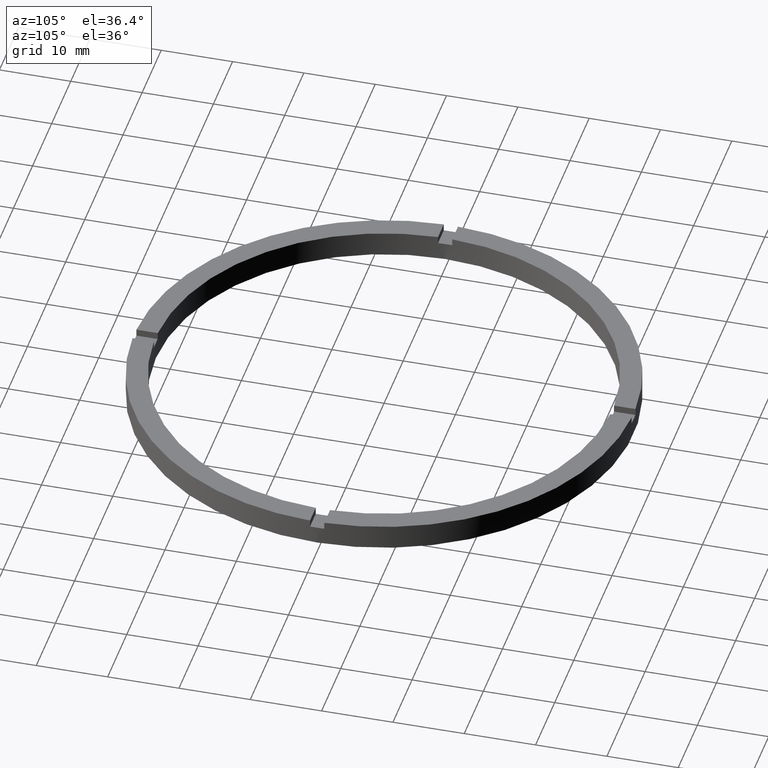
[diagram: clean part render]
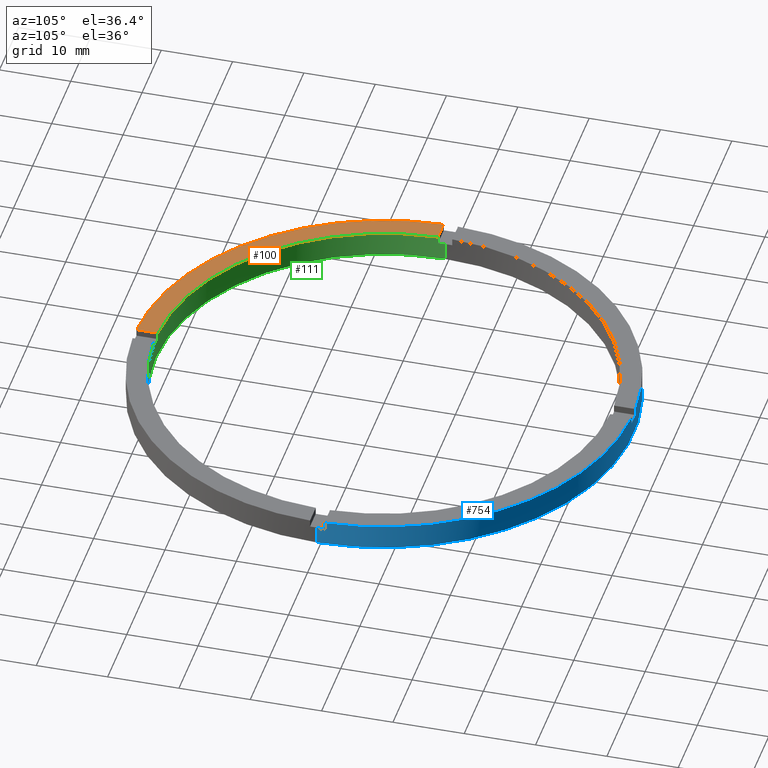
[diagram: same view with three faces highlighted in distinct colors, each labeled with its STEP entity id]
A machine part, auxiliary view with three faces highlighted in distinct colors.
Their STEP definitions:

[orange] entity #100 — the highlighted planar face has unit normal (0, 0, 1).
#29 = CARTESIAN_POINT ( 'NONE',  ( -31.98437118343894880, -1.000000000000026201, 3.500000000000000000 ) ) ;
#70 = AXIS2_PLACEMENT_3D ( 'NONE', #345, #662, #271 ) ;
#94 = CARTESIAN_POINT ( 'NONE',  ( -1.000000000000160538, -34.98571136907180090, 3.500000000000000000 ) ) ;
#97 = CARTESIAN_POINT ( 'NONE',  ( -25.00000000000019540, -1.000000000000024869, 3.500000000000000000 ) ) ;
#100 = ADVANCED_FACE ( 'NONE', ( #417 ), #463, .T. ) ;
#109 = EDGE_CURVE ( 'NONE', #545, #282, #199, .T. ) ;
#120 = EDGE_CURVE ( 'NONE', #135, #429, #718, .T. ) ;
#135 = VERTEX_POINT ( 'NONE', #154 ) ;
#145 = EDGE_CURVE ( 'NONE', #429, #545, #743, .T. ) ;
#154 = CARTESIAN_POINT ( 'NONE',  ( -34.98571136907180801, -1.000000000000026645, 3.500000000000000000 ) ) ;
#199 = LINE ( 'NONE', #381, #203 ) ;
#203 = VECTOR ( 'NONE', #698, 1000.000000000000000 ) ;
#214 = VECTOR ( 'NONE', #646, 1000.000000000000000 ) ;
#246 = DIRECTION ( 'NONE',  ( 1.000000000000000000, 0.000000000000000000, 0.000000000000000000 ) ) ;
#271 = DIRECTION ( 'NONE',  ( 1.000000000000000000, 0.000000000000000000, 0.000000000000000000 ) ) ;
#282 = VERTEX_POINT ( 'NONE', #94 ) ;
#301 = AXIS2_PLACEMENT_3D ( 'NONE', #735, #498, #246 ) ;
#345 = CARTESIAN_POINT ( 'NONE',  ( 0.000000000000000000, 0.000000000000000000, 3.500000000000000000 ) ) ;
#356 = ORIENTED_EDGE ( 'NONE', *, *, #109, .F. ) ;
#375 = ORIENTED_EDGE ( 'NONE', *, *, #746, .T. ) ;
#381 = CARTESIAN_POINT ( 'NONE',  ( -1.000000000000161871, -25.00000000000018829, 3.500000000000000000 ) ) ;
#410 = ORIENTED_EDGE ( 'NONE', *, *, #145, .F. ) ;
#414 = EDGE_LOOP ( 'NONE', ( #356, #410, #677, #375 ) ) ;
#417 = FACE_OUTER_BOUND ( 'NONE', #414, .T. ) ;
#429 = VERTEX_POINT ( 'NONE', #29 ) ;
#452 = AXIS2_PLACEMENT_3D ( 'NONE', #523, #638, #689 ) ;
#463 = PLANE ( 'NONE',  #452 ) ;
#498 = DIRECTION ( 'NONE',  ( 0.000000000000000000, 0.000000000000000000, 1.000000000000000000 ) ) ;
#523 = CARTESIAN_POINT ( 'NONE',  ( 0.000000000000000000, 0.000000000000000000, 3.500000000000000000 ) ) ;
#545 = VERTEX_POINT ( 'NONE', #644 ) ;
#638 = DIRECTION ( 'NONE',  ( 0.000000000000000000, 0.000000000000000000, 1.000000000000000000 ) ) ;
#644 = CARTESIAN_POINT ( 'NONE',  ( -1.000000000000160982, -31.98437118343894170, 3.500000000000000000 ) ) ;
#646 = DIRECTION ( 'NONE',  ( 1.000000000000000000, 1.951563910473907735E-16, -0.000000000000000000 ) ) ;
#662 = DIRECTION ( 'NONE',  ( 0.000000000000000000, 0.000000000000000000, 1.000000000000000000 ) ) ;
#677 = ORIENTED_EDGE ( 'NONE', *, *, #120, .F. ) ;
#689 = DIRECTION ( 'NONE',  ( 1.000000000000000000, 0.000000000000000000, -0.000000000000000000 ) ) ;
#698 = DIRECTION ( 'NONE',  ( 1.301042606982605074E-16, -1.000000000000000000, 0.000000000000000000 ) ) ;
#718 = LINE ( 'NONE', #97, #214 ) ;
#719 = CIRCLE ( 'NONE', #70, 35.00000000000000711 ) ;
#735 = CARTESIAN_POINT ( 'NONE',  ( 0.000000000000000000, 0.000000000000000000, 3.500000000000000000 ) ) ;
#743 = CIRCLE ( 'NONE', #301, 32.00000000000000000 ) ;
#746 = EDGE_CURVE ( 'NONE', #135, #282, #719, .T. ) ;

[blue] entity #754 — the highlighted cylindrical surface (partial cylindrical patch) has radius 35 mm, axis along (-0, -0, -1).
#16 = EDGE_CURVE ( 'NONE', #268, #338, #696, .T. ) ;
#17 = CARTESIAN_POINT ( 'NONE',  ( 34.98571136907181511, 0.9999999999998421263, 3.500000000000000000 ) ) ;
#20 = ORIENTED_EDGE ( 'NONE', *, *, #281, .T. ) ;
#30 = DIRECTION ( 'NONE',  ( 0.000000000000000000, 0.000000000000000000, 1.000000000000000000 ) ) ;
#45 = DIRECTION ( 'NONE',  ( 1.000000000000000000, 0.000000000000000000, 0.000000000000000000 ) ) ;
#49 = EDGE_CURVE ( 'NONE', #268, #409, #426, .T. ) ;
#53 = CARTESIAN_POINT ( 'NONE',  ( 35.00000000000000711, 4.286263797015737285E-15, 2.500000000000000000 ) ) ;
#54 = CARTESIAN_POINT ( 'NONE',  ( 0.000000000000000000, 0.000000000000000000, 3.500000000000000000 ) ) ;
#60 = DIRECTION ( 'NONE',  ( 0.000000000000000000, 0.000000000000000000, 1.000000000000000000 ) ) ;
#72 = DIRECTION ( 'NONE',  ( 0.000000000000000000, 0.000000000000000000, 1.000000000000000000 ) ) ;
#74 = ORIENTED_EDGE ( 'NONE', *, *, #321, .F. ) ;
#76 = ORIENTED_EDGE ( 'NONE', *, *, #234, .F. ) ;
#80 = CARTESIAN_POINT ( 'NONE',  ( -1.000000000000024869, 34.98571136907180801, 3.500000000000000000 ) ) ;
#82 = DIRECTION ( 'NONE',  ( -0.000000000000000000, -0.000000000000000000, -1.000000000000000000 ) ) ;
#88 = ORIENTED_EDGE ( 'NONE', *, *, #16, .F. ) ;
#93 = ORIENTED_EDGE ( 'NONE', *, *, #567, .T. ) ;
#98 = DIRECTION ( 'NONE',  ( 1.000000000000000000, 0.000000000000000000, 0.000000000000000000 ) ) ;
#110 = CARTESIAN_POINT ( 'NONE',  ( -34.98571136907180801, 0.9999999999999733546, 2.500000000000000000 ) ) ;
#124 = CARTESIAN_POINT ( 'NONE',  ( 0.000000000000000000, 0.000000000000000000, 2.500000000000000000 ) ) ;
#126 = ORIENTED_EDGE ( 'NONE', *, *, #626, .T. ) ;
#128 = DIRECTION ( 'NONE',  ( 0.000000000000000000, -0.000000000000000000, 1.000000000000000000 ) ) ;
#130 = LINE ( 'NONE', #236, #401 ) ;
#136 = VERTEX_POINT ( 'NONE', #298 ) ;
#138 = CARTESIAN_POINT ( 'NONE',  ( 0.9999999999999751310, 34.98571136907180801, 3.500000000000000000 ) ) ;
#142 = AXIS2_PLACEMENT_3D ( 'NONE', #302, #72, #45 ) ;
#151 = DIRECTION ( 'NONE',  ( -0.000000000000000000, -0.000000000000000000, -1.000000000000000000 ) ) ;
#156 = VERTEX_POINT ( 'NONE', #17 ) ;
#162 = VERTEX_POINT ( 'NONE', #482 ) ;
#179 = VERTEX_POINT ( 'NONE', #53 ) ;
#186 = VECTOR ( 'NONE', #151, 1000.000000000000000 ) ;
#195 = EDGE_CURVE ( 'NONE', #162, #631, #243, .T. ) ;
#200 = CARTESIAN_POINT ( 'NONE',  ( -35.00000000000000711, 0.000000000000000000, 0.000000000000000000 ) ) ;
#201 = LINE ( 'NONE', #650, #186 ) ;
#202 = FACE_OUTER_BOUND ( 'NONE', #629, .T. ) ;
#232 = AXIS2_PLACEMENT_3D ( 'NONE', #124, #128, #758 ) ;
#234 = EDGE_CURVE ( 'NONE', #439, #633, #251, .T. ) ;
#236 = CARTESIAN_POINT ( 'NONE',  ( 34.98571136907181511, 0.9999999999998421263, 3.500000000000000000 ) ) ;
#240 = LINE ( 'NONE', #379, #672 ) ;
#243 = LINE ( 'NONE', #720, #512 ) ;
#249 = DIRECTION ( 'NONE',  ( -0.000000000000000000, -0.000000000000000000, -1.000000000000000000 ) ) ;
#251 = CIRCLE ( 'NONE', #324, 35.00000000000000711 ) ;
#255 = DIRECTION ( 'NONE',  ( 1.000000000000000000, 0.000000000000000000, 0.000000000000000000 ) ) ;
#256 = DIRECTION ( 'NONE',  ( -1.000000000000000000, 0.000000000000000000, 0.000000000000000000 ) ) ;
#257 = EDGE_CURVE ( 'NONE', #667, #162, #774, .T. ) ;
#268 = VERTEX_POINT ( 'NONE', #775 ) ;
#281 = EDGE_CURVE ( 'NONE', #667, #633, #240, .T. ) ;
#283 = CIRCLE ( 'NONE', #142, 35.00000000000000711 ) ;
#298 = CARTESIAN_POINT ( 'NONE',  ( 34.98571136907181511, 0.9999999999998421263, 2.500000000000000000 ) ) ;
#302 = CARTESIAN_POINT ( 'NONE',  ( 0.000000000000000000, 0.000000000000000000, 3.500000000000000000 ) ) ;
#303 = EDGE_CURVE ( 'NONE', #156, #136, #130, .T. ) ;
#321 = EDGE_CURVE ( 'NONE', #179, #136, #389, .T. ) ;
#322 = LINE ( 'NONE', #80, #458 ) ;
#324 = AXIS2_PLACEMENT_3D ( 'NONE', #402, #490, #407 ) ;
#338 = VERTEX_POINT ( 'NONE', #649 ) ;
#359 = AXIS2_PLACEMENT_3D ( 'NONE', #54, #504, #256 ) ;
#361 = CARTESIAN_POINT ( 'NONE',  ( -34.98571136907180801, 0.9999999999999733546, 3.500000000000000000 ) ) ;
#366 = VERTEX_POINT ( 'NONE', #466 ) ;
#368 = AXIS2_PLACEMENT_3D ( 'NONE', #769, #388, #98 ) ;
#369 = ORIENTED_EDGE ( 'NONE', *, *, #494, .F. ) ;
#370 = ORIENTED_EDGE ( 'NONE', *, *, #49, .T. ) ;
#371 = ORIENTED_EDGE ( 'NONE', *, *, #608, .T. ) ;
#379 = CARTESIAN_POINT ( 'NONE',  ( -34.98571136907180801, 0.9999999999999733546, 3.500000000000000000 ) ) ;
#388 = DIRECTION ( 'NONE',  ( 0.000000000000000000, 0.000000000000000000, 1.000000000000000000 ) ) ;
#389 = CIRCLE ( 'NONE', #368, 35.00000000000000711 ) ;
#401 = VECTOR ( 'NONE', #536, 1000.000000000000000 ) ;
#402 = CARTESIAN_POINT ( 'NONE',  ( 0.000000000000000000, 0.000000000000000000, 3.500000000000000000 ) ) ;
#407 = DIRECTION ( 'NONE',  ( 1.000000000000000000, 0.000000000000000000, 0.000000000000000000 ) ) ;
#409 = VERTEX_POINT ( 'NONE', #780 ) ;
#426 = LINE ( 'NONE', #138, #446 ) ;
#437 = ORIENTED_EDGE ( 'NONE', *, *, #195, .F. ) ;
#439 = VERTEX_POINT ( 'NONE', #681 ) ;
#443 = CARTESIAN_POINT ( 'NONE',  ( 0.000000000000000000, 0.000000000000000000, 0.000000000000000000 ) ) ;
#446 = VECTOR ( 'NONE', #60, 1000.000000000000000 ) ;
#458 = VECTOR ( 'NONE', #249, 1000.000000000000000 ) ;
#464 = CYLINDRICAL_SURFACE ( 'NONE', #359, 35.00000000000000711 ) ;
#466 = CARTESIAN_POINT ( 'NONE',  ( 35.00000000000000711, 4.286263797015737285E-15, 0.000000000000000000 ) ) ;
#482 = CARTESIAN_POINT ( 'NONE',  ( -35.00000000000000711, 0.000000000000000000, 2.500000000000000000 ) ) ;
#490 = DIRECTION ( 'NONE',  ( 0.000000000000000000, 0.000000000000000000, 1.000000000000000000 ) ) ;
#494 = EDGE_CURVE ( 'NONE', #156, #409, #283, .T. ) ;
#504 = DIRECTION ( 'NONE',  ( -0.000000000000000000, -0.000000000000000000, -1.000000000000000000 ) ) ;
#512 = VECTOR ( 'NONE', #82, 1000.000000000000000 ) ;
#536 = DIRECTION ( 'NONE',  ( -0.000000000000000000, -0.000000000000000000, -1.000000000000000000 ) ) ;
#567 = EDGE_CURVE ( 'NONE', #439, #338, #322, .T. ) ;
#573 = AXIS2_PLACEMENT_3D ( 'NONE', #443, #30, #611 ) ;
#608 = EDGE_CURVE ( 'NONE', #179, #366, #201, .T. ) ;
#611 = DIRECTION ( 'NONE',  ( 1.000000000000000000, 0.000000000000000000, 0.000000000000000000 ) ) ;
#626 = EDGE_CURVE ( 'NONE', #366, #631, #704, .T. ) ;
#629 = EDGE_LOOP ( 'NONE', ( #74, #371, #126, #437, #687, #20, #76, #93, #88, #370, #369, #694 ) ) ;
#631 = VERTEX_POINT ( 'NONE', #200 ) ;
#633 = VERTEX_POINT ( 'NONE', #361 ) ;
#643 = DIRECTION ( 'NONE',  ( 0.000000000000000000, 0.000000000000000000, 1.000000000000000000 ) ) ;
#649 = CARTESIAN_POINT ( 'NONE',  ( -1.000000000000024869, 34.98571136907180801, 2.500000000000000000 ) ) ;
#650 = CARTESIAN_POINT ( 'NONE',  ( 35.00000000000000711, 4.286263797015737285E-15, 3.500000000000000000 ) ) ;
#659 = CARTESIAN_POINT ( 'NONE',  ( 0.000000000000000000, 0.000000000000000000, 2.500000000000000000 ) ) ;
#665 = DIRECTION ( 'NONE',  ( 0.000000000000000000, 0.000000000000000000, 1.000000000000000000 ) ) ;
#667 = VERTEX_POINT ( 'NONE', #110 ) ;
#672 = VECTOR ( 'NONE', #643, 1000.000000000000000 ) ;
#681 = CARTESIAN_POINT ( 'NONE',  ( -1.000000000000024869, 34.98571136907180801, 3.500000000000000000 ) ) ;
#687 = ORIENTED_EDGE ( 'NONE', *, *, #257, .F. ) ;
#694 = ORIENTED_EDGE ( 'NONE', *, *, #303, .T. ) ;
#696 = CIRCLE ( 'NONE', #232, 35.00000000000000711 ) ;
#704 = CIRCLE ( 'NONE', #573, 35.00000000000000711 ) ;
#720 = CARTESIAN_POINT ( 'NONE',  ( -35.00000000000000711, 0.000000000000000000, 3.500000000000000000 ) ) ;
#742 = AXIS2_PLACEMENT_3D ( 'NONE', #659, #665, #255 ) ;
#754 = ADVANCED_FACE ( 'NONE', ( #202 ), #464, .T. ) ;
#758 = DIRECTION ( 'NONE',  ( 1.000000000000000000, 0.000000000000000000, 0.000000000000000000 ) ) ;
#769 = CARTESIAN_POINT ( 'NONE',  ( 0.000000000000000000, 0.000000000000000000, 2.500000000000000000 ) ) ;
#774 = CIRCLE ( 'NONE', #742, 35.00000000000000711 ) ;
#775 = CARTESIAN_POINT ( 'NONE',  ( 0.9999999999999751310, 34.98571136907180801, 2.500000000000000000 ) ) ;
#780 = CARTESIAN_POINT ( 'NONE',  ( 0.9999999999999751310, 34.98571136907180801, 3.500000000000000000 ) ) ;

[green] entity #111 — the highlighted cylindrical surface (partial cylindrical patch) has radius 32 mm, axis along (-0, -0, -1).
#8 = DIRECTION ( 'NONE',  ( 1.000000000000000000, 0.000000000000000000, 0.000000000000000000 ) ) ;
#23 = LINE ( 'NONE', #144, #522 ) ;
#25 = AXIS2_PLACEMENT_3D ( 'NONE', #763, #571, #75 ) ;
#27 = EDGE_CURVE ( 'NONE', #182, #147, #191, .T. ) ;
#29 = CARTESIAN_POINT ( 'NONE',  ( -31.98437118343894880, -1.000000000000026201, 3.500000000000000000 ) ) ;
#36 = AXIS2_PLACEMENT_3D ( 'NONE', #46, #341, #299 ) ;
#42 = CARTESIAN_POINT ( 'NONE',  ( 0.9999999999998391287, -31.98437118343895591, 3.500000000000000000 ) ) ;
#44 = DIRECTION ( 'NONE',  ( -0.000000000000000000, -0.000000000000000000, -1.000000000000000000 ) ) ;
#46 = CARTESIAN_POINT ( 'NONE',  ( 0.000000000000000000, 0.000000000000000000, 3.500000000000000000 ) ) ;
#52 = DIRECTION ( 'NONE',  ( 0.000000000000000000, 0.000000000000000000, 1.000000000000000000 ) ) ;
#75 = DIRECTION ( 'NONE',  ( 1.000000000000000000, 0.000000000000000000, 0.000000000000000000 ) ) ;
#81 = ORIENTED_EDGE ( 'NONE', *, *, #363, .T. ) ;
#86 = ORIENTED_EDGE ( 'NONE', *, *, #701, .F. ) ;
#89 = VERTEX_POINT ( 'NONE', #519 ) ;
#99 = EDGE_CURVE ( 'NONE', #147, #139, #169, .T. ) ;
#101 = CARTESIAN_POINT ( 'NONE',  ( 32.00000000000000000, 3.918869757271530263E-15, 0.000000000000000000 ) ) ;
#104 = CARTESIAN_POINT ( 'NONE',  ( 0.000000000000000000, 0.000000000000000000, 2.500000000000000000 ) ) ;
#106 = CARTESIAN_POINT ( 'NONE',  ( 32.00000000000000000, 3.918869757271530263E-15, 2.500000000000000000 ) ) ;
#111 = ADVANCED_FACE ( 'NONE', ( #208 ), #459, .F. ) ;
#127 = AXIS2_PLACEMENT_3D ( 'NONE', #440, #619, #518 ) ;
#132 = ORIENTED_EDGE ( 'NONE', *, *, #551, .F. ) ;
#134 = ORIENTED_EDGE ( 'NONE', *, *, #145, .T. ) ;
#139 = VERTEX_POINT ( 'NONE', #101 ) ;
#143 = ORIENTED_EDGE ( 'NONE', *, *, #477, .T. ) ;
#144 = CARTESIAN_POINT ( 'NONE',  ( -31.98437118343894880, -1.000000000000026201, 3.500000000000000000 ) ) ;
#145 = EDGE_CURVE ( 'NONE', #429, #545, #743, .T. ) ;
#147 = VERTEX_POINT ( 'NONE', #106 ) ;
#160 = EDGE_LOOP ( 'NONE', ( #445, #692, #544, #86, #143, #403, #134, #132, #532, #349, #81, #635 ) ) ;
#169 = LINE ( 'NONE', #327, #196 ) ;
#181 = CARTESIAN_POINT ( 'NONE',  ( -32.00000000000000000, 0.000000000000000000, 0.000000000000000000 ) ) ;
#182 = VERTEX_POINT ( 'NONE', #727 ) ;
#189 = VERTEX_POINT ( 'NONE', #396 ) ;
#191 = CIRCLE ( 'NONE', #25, 32.00000000000000000 ) ;
#196 = VECTOR ( 'NONE', #579, 1000.000000000000000 ) ;
#208 = FACE_OUTER_BOUND ( 'NONE', #160, .T. ) ;
#246 = DIRECTION ( 'NONE',  ( 1.000000000000000000, 0.000000000000000000, 0.000000000000000000 ) ) ;
#261 = VERTEX_POINT ( 'NONE', #348 ) ;
#266 = VERTEX_POINT ( 'NONE', #585 ) ;
#295 = EDGE_CURVE ( 'NONE', #266, #783, #660, .T. ) ;
#299 = DIRECTION ( 'NONE',  ( 1.000000000000000000, 0.000000000000000000, 0.000000000000000000 ) ) ;
#300 = CIRCLE ( 'NONE', #36, 32.00000000000000000 ) ;
#301 = AXIS2_PLACEMENT_3D ( 'NONE', #735, #498, #246 ) ;
#309 = VECTOR ( 'NONE', #589, 1000.000000000000000 ) ;
#327 = CARTESIAN_POINT ( 'NONE',  ( 32.00000000000000000, 3.918869757271530263E-15, 3.500000000000000000 ) ) ;
#341 = DIRECTION ( 'NONE',  ( 0.000000000000000000, 0.000000000000000000, 1.000000000000000000 ) ) ;
#344 = AXIS2_PLACEMENT_3D ( 'NONE', #548, #355, #591 ) ;
#348 = CARTESIAN_POINT ( 'NONE',  ( 31.98437118343894170, -1.000000000000157874, 3.500000000000000000 ) ) ;
#349 = ORIENTED_EDGE ( 'NONE', *, *, #295, .F. ) ;
#355 = DIRECTION ( 'NONE',  ( -0.000000000000000000, -0.000000000000000000, -1.000000000000000000 ) ) ;
#363 = EDGE_CURVE ( 'NONE', #266, #261, #300, .T. ) ;
#376 = EDGE_CURVE ( 'NONE', #182, #261, #570, .T. ) ;
#383 = VECTOR ( 'NONE', #44, 1000.000000000000000 ) ;
#385 = CARTESIAN_POINT ( 'NONE',  ( -31.98437118343894880, -1.000000000000026201, 2.500000000000000000 ) ) ;
#395 = VERTEX_POINT ( 'NONE', #385 ) ;
#396 = CARTESIAN_POINT ( 'NONE',  ( -1.000000000000160982, -31.98437118343894170, 2.500000000000000000 ) ) ;
#403 = ORIENTED_EDGE ( 'NONE', *, *, #501, .F. ) ;
#428 = AXIS2_PLACEMENT_3D ( 'NONE', #104, #624, #509 ) ;
#429 = VERTEX_POINT ( 'NONE', #29 ) ;
#435 = EDGE_CURVE ( 'NONE', #671, #139, #557, .T. ) ;
#440 = CARTESIAN_POINT ( 'NONE',  ( 0.000000000000000000, 0.000000000000000000, 0.000000000000000000 ) ) ;
#445 = ORIENTED_EDGE ( 'NONE', *, *, #27, .T. ) ;
#459 = CYLINDRICAL_SURFACE ( 'NONE', #344, 32.00000000000000000 ) ;
#470 = CARTESIAN_POINT ( 'NONE',  ( 0.000000000000000000, 0.000000000000000000, 2.500000000000000000 ) ) ;
#471 = CIRCLE ( 'NONE', #428, 32.00000000000000000 ) ;
#477 = EDGE_CURVE ( 'NONE', #89, #395, #558, .T. ) ;
#498 = DIRECTION ( 'NONE',  ( 0.000000000000000000, 0.000000000000000000, 1.000000000000000000 ) ) ;
#501 = EDGE_CURVE ( 'NONE', #429, #395, #23, .T. ) ;
#509 = DIRECTION ( 'NONE',  ( 1.000000000000000000, 0.000000000000000000, 0.000000000000000000 ) ) ;
#514 = CARTESIAN_POINT ( 'NONE',  ( -32.00000000000000000, 0.000000000000000000, 3.500000000000000000 ) ) ;
#518 = DIRECTION ( 'NONE',  ( 1.000000000000000000, 0.000000000000000000, 0.000000000000000000 ) ) ;
#519 = CARTESIAN_POINT ( 'NONE',  ( -32.00000000000000000, 0.000000000000000000, 2.500000000000000000 ) ) ;
#522 = VECTOR ( 'NONE', #707, 1000.000000000000000 ) ;
#532 = ORIENTED_EDGE ( 'NONE', *, *, #628, .T. ) ;
#538 = LINE ( 'NONE', #546, #543 ) ;
#539 = AXIS2_PLACEMENT_3D ( 'NONE', #470, #782, #8 ) ;
#543 = VECTOR ( 'NONE', #52, 1000.000000000000000 ) ;
#544 = ORIENTED_EDGE ( 'NONE', *, *, #435, .F. ) ;
#545 = VERTEX_POINT ( 'NONE', #644 ) ;
#546 = CARTESIAN_POINT ( 'NONE',  ( -1.000000000000160982, -31.98437118343894170, 3.500000000000000000 ) ) ;
#548 = CARTESIAN_POINT ( 'NONE',  ( 0.000000000000000000, 0.000000000000000000, 3.500000000000000000 ) ) ;
#551 = EDGE_CURVE ( 'NONE', #189, #545, #538, .T. ) ;
#557 = CIRCLE ( 'NONE', #127, 32.00000000000000000 ) ;
#558 = CIRCLE ( 'NONE', #539, 32.00000000000000000 ) ;
#570 = LINE ( 'NONE', #713, #309 ) ;
#571 = DIRECTION ( 'NONE',  ( 0.000000000000000000, 0.000000000000000000, 1.000000000000000000 ) ) ;
#579 = DIRECTION ( 'NONE',  ( -0.000000000000000000, -0.000000000000000000, -1.000000000000000000 ) ) ;
#585 = CARTESIAN_POINT ( 'NONE',  ( 0.9999999999998391287, -31.98437118343895591, 3.500000000000000000 ) ) ;
#589 = DIRECTION ( 'NONE',  ( 0.000000000000000000, 0.000000000000000000, 1.000000000000000000 ) ) ;
#591 = DIRECTION ( 'NONE',  ( -1.000000000000000000, 0.000000000000000000, 0.000000000000000000 ) ) ;
#617 = DIRECTION ( 'NONE',  ( -0.000000000000000000, -0.000000000000000000, -1.000000000000000000 ) ) ;
#619 = DIRECTION ( 'NONE',  ( 0.000000000000000000, 0.000000000000000000, 1.000000000000000000 ) ) ;
#624 = DIRECTION ( 'NONE',  ( -0.000000000000000000, 0.000000000000000000, 1.000000000000000000 ) ) ;
#628 = EDGE_CURVE ( 'NONE', #189, #783, #471, .T. ) ;
#635 = ORIENTED_EDGE ( 'NONE', *, *, #376, .F. ) ;
#644 = CARTESIAN_POINT ( 'NONE',  ( -1.000000000000160982, -31.98437118343894170, 3.500000000000000000 ) ) ;
#660 = LINE ( 'NONE', #42, #383 ) ;
#671 = VERTEX_POINT ( 'NONE', #181 ) ;
#692 = ORIENTED_EDGE ( 'NONE', *, *, #99, .T. ) ;
#701 = EDGE_CURVE ( 'NONE', #89, #671, #710, .T. ) ;
#707 = DIRECTION ( 'NONE',  ( -0.000000000000000000, -0.000000000000000000, -1.000000000000000000 ) ) ;
#710 = LINE ( 'NONE', #514, #726 ) ;
#713 = CARTESIAN_POINT ( 'NONE',  ( 31.98437118343894170, -1.000000000000157874, 3.500000000000000000 ) ) ;
#726 = VECTOR ( 'NONE', #617, 1000.000000000000000 ) ;
#727 = CARTESIAN_POINT ( 'NONE',  ( 31.98437118343894170, -1.000000000000157874, 2.500000000000000000 ) ) ;
#735 = CARTESIAN_POINT ( 'NONE',  ( 0.000000000000000000, 0.000000000000000000, 3.500000000000000000 ) ) ;
#743 = CIRCLE ( 'NONE', #301, 32.00000000000000000 ) ;
#763 = CARTESIAN_POINT ( 'NONE',  ( 0.000000000000000000, 0.000000000000000000, 2.500000000000000000 ) ) ;
#764 = CARTESIAN_POINT ( 'NONE',  ( 0.9999999999998391287, -31.98437118343895591, 2.500000000000000000 ) ) ;
#782 = DIRECTION ( 'NONE',  ( 0.000000000000000000, 0.000000000000000000, 1.000000000000000000 ) ) ;
#783 = VERTEX_POINT ( 'NONE', #764 ) ;